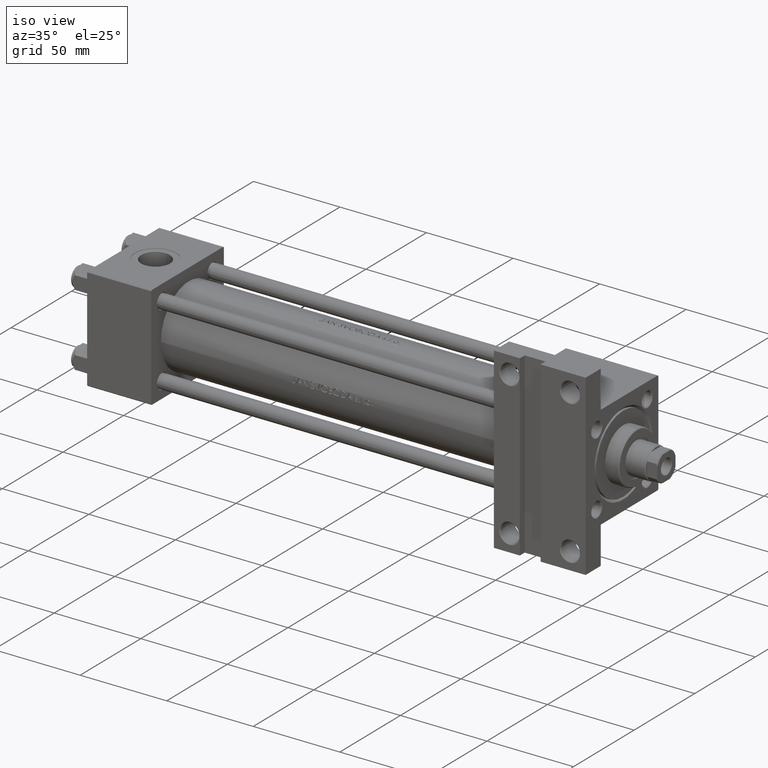
[diagram: clean part render]
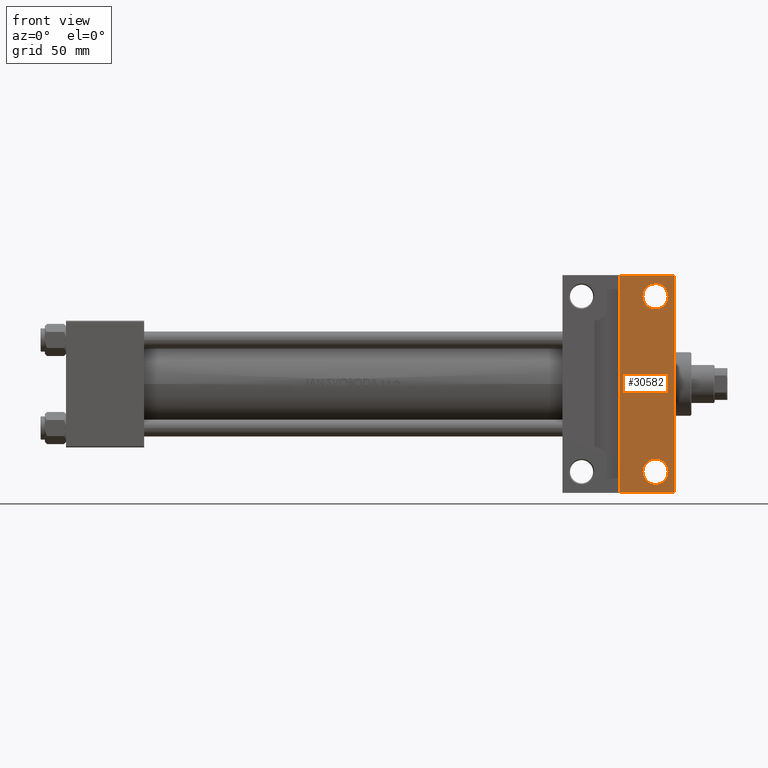
[diagram: tour spotlight — one face highlighted and labeled with its STEP entity id]
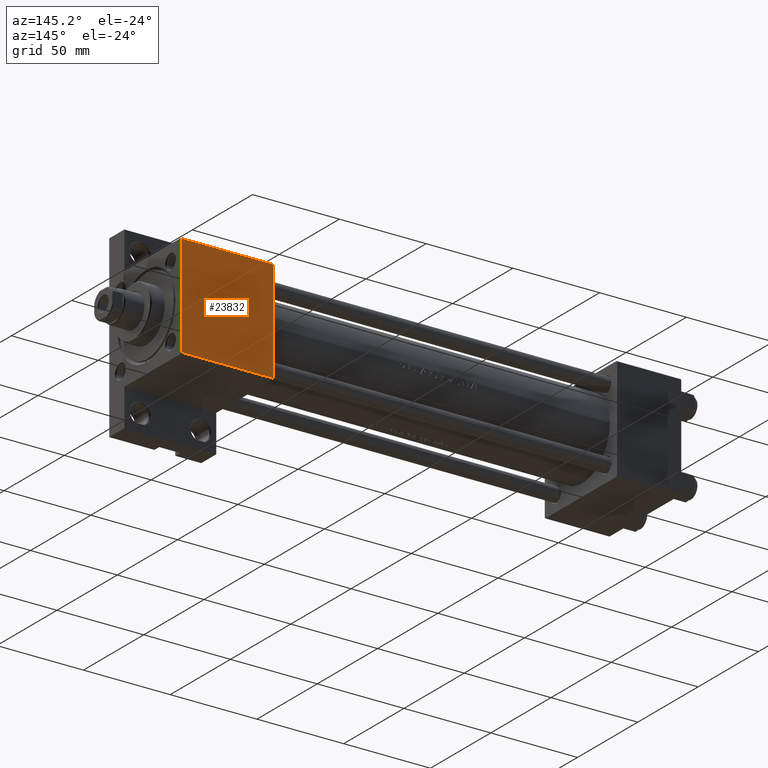
[diagram: tour spotlight — one face highlighted and labeled with its STEP entity id]
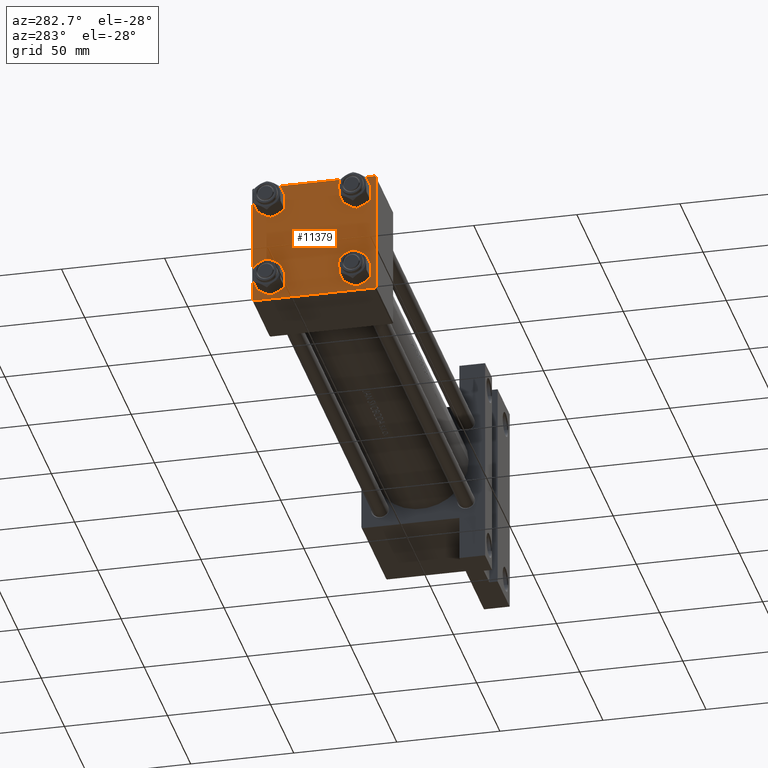
[diagram: tour spotlight — one face highlighted and labeled with its STEP entity id]
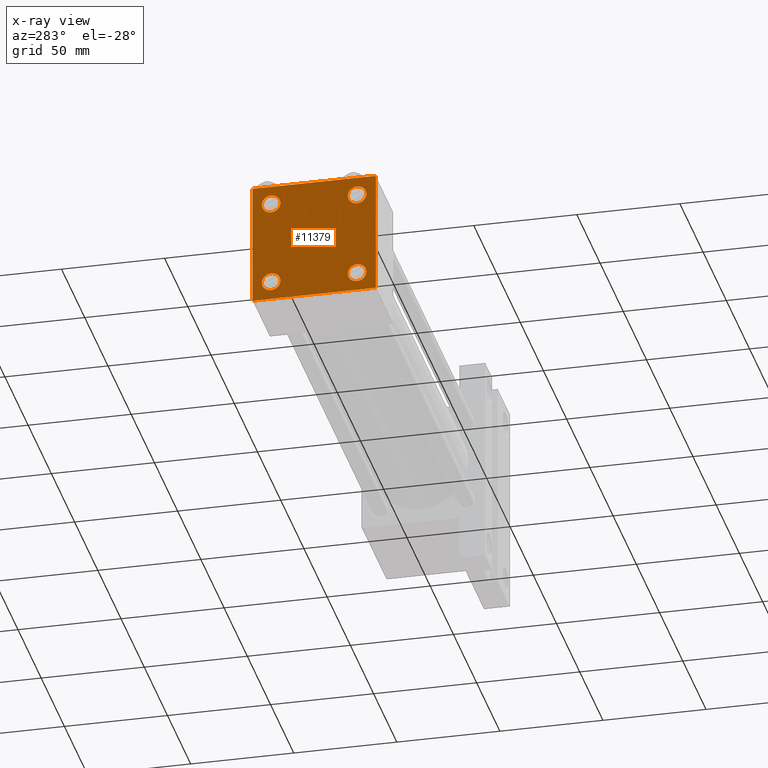
[diagram: x-ray of the same camera — body ghosted, this tour face saturated]
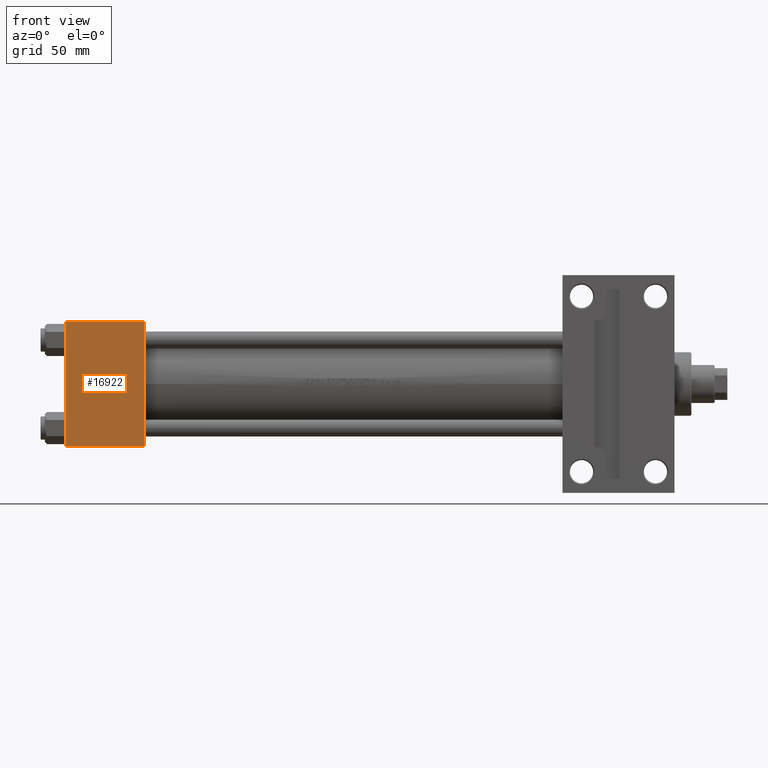
[diagram: tour spotlight — one face highlighted and labeled with its STEP entity id]
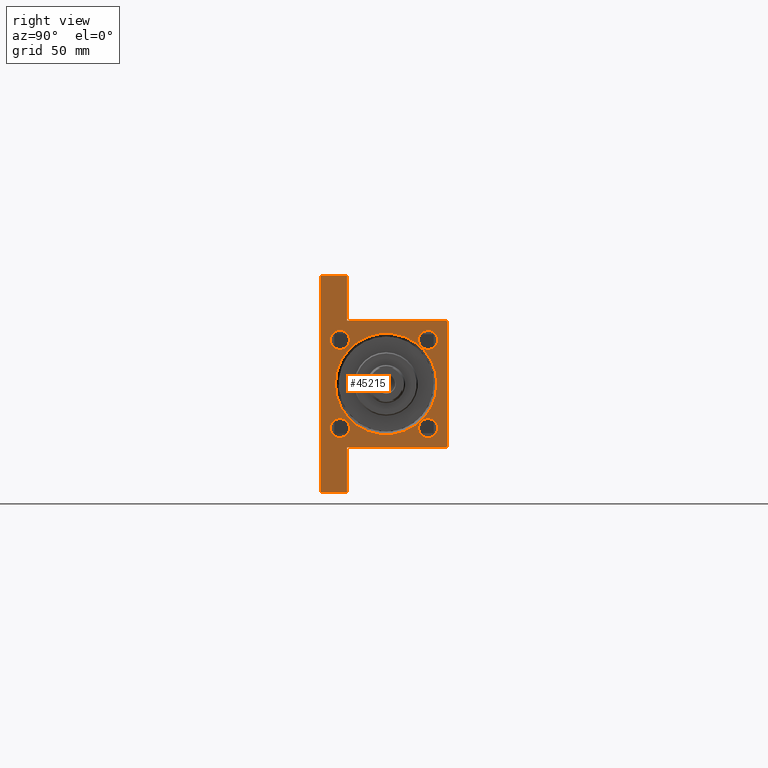
[diagram: tour spotlight — one face highlighted and labeled with its STEP entity id]
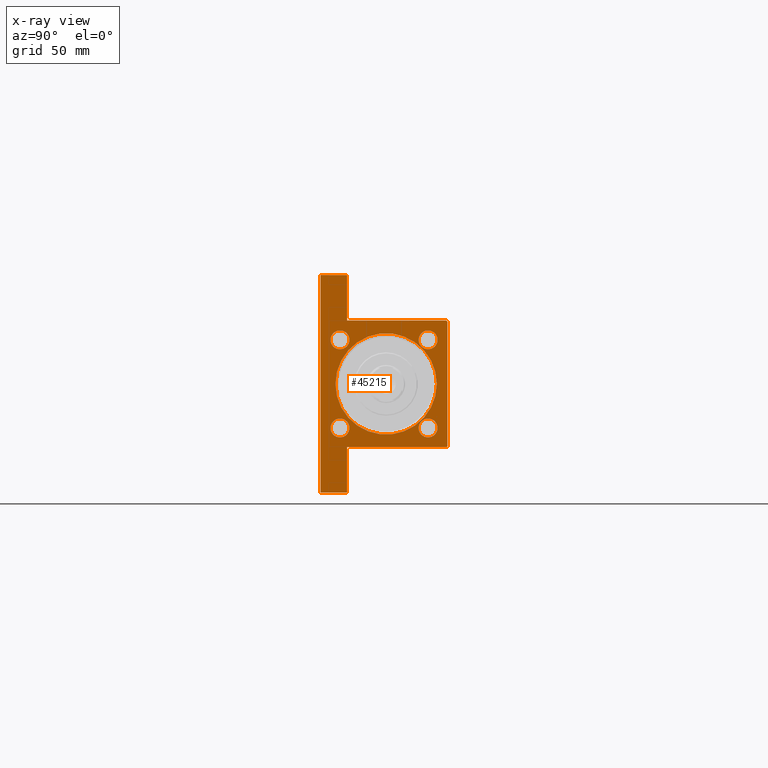
[diagram: x-ray of the same camera — body ghosted, this tour face saturated]
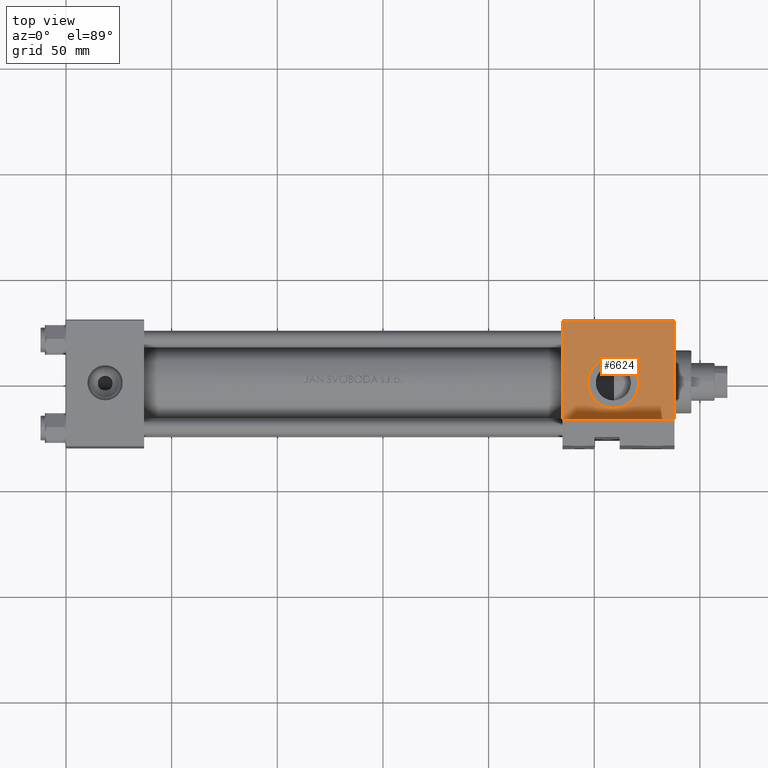
[diagram: tour spotlight — one face highlighted and labeled with its STEP entity id]
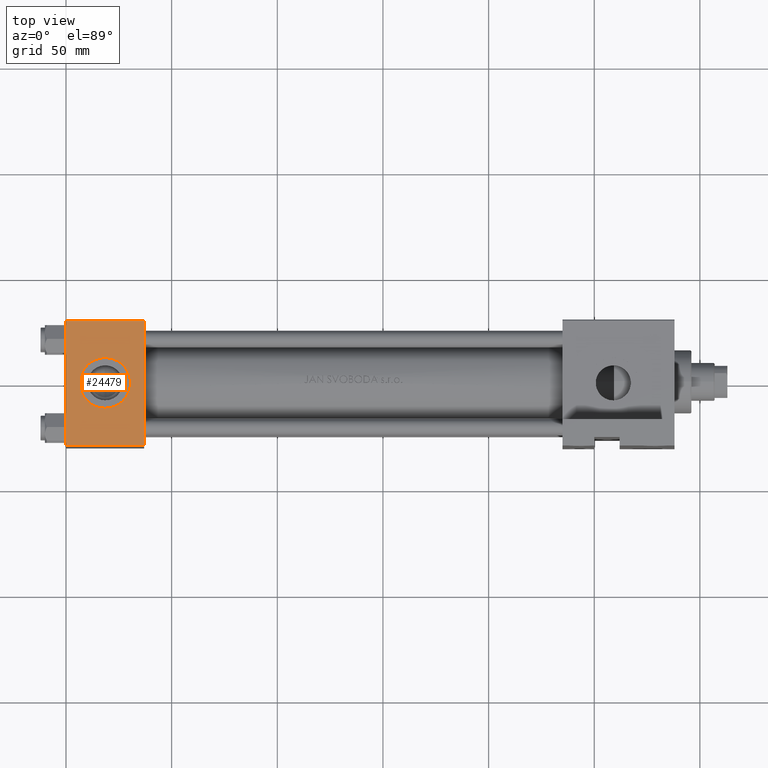
[diagram: tour spotlight — one face highlighted and labeled with its STEP entity id]
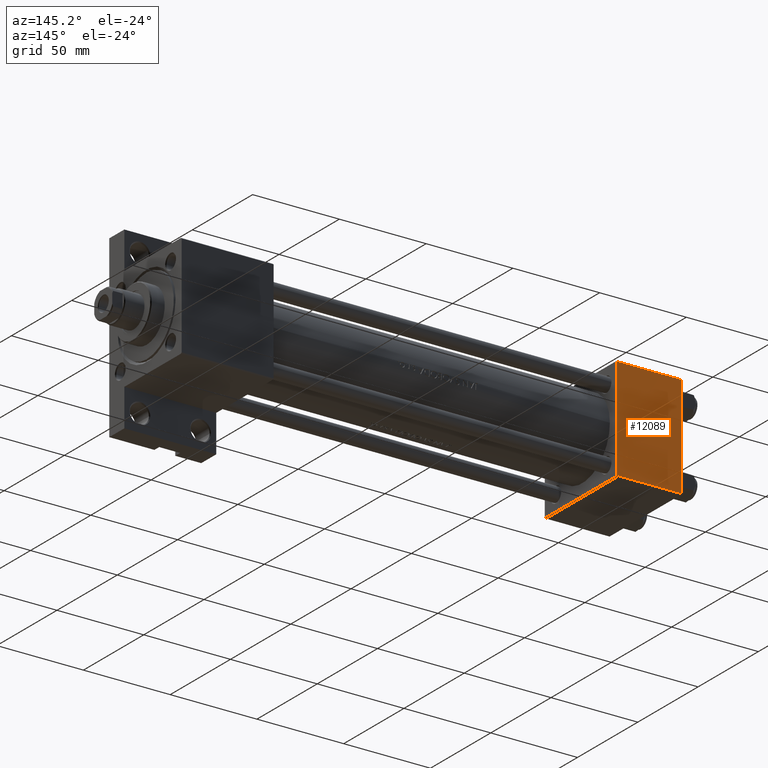
[diagram: tour spotlight — one face highlighted and labeled with its STEP entity id]
A machine part: a face-by-face anatomy tour. The part has 1118 B-rep faces; the first image is the clean iso view, then the 8 largest visible faces are spotlighted one at a time (largest first), each with its STEP entity span.

Face 1 — front view, entity #30582. In plain terms, the highlighted planar face has unit normal (0, -1, -0).
Definition (entity closure, byte-faithful):
#1584 = CARTESIAN_POINT ( 'NONE',  ( 279.0000000000000000, -41.50000000000000000, -30.00000000000000000 ) ) ;
#2647 = VERTEX_POINT ( 'NONE', #20515 ) ;
#2823 = VERTEX_POINT ( 'NONE', #18766 ) ;
#4970 = DIRECTION ( 'NONE',  ( -0.000000000000000000, -1.156482317317871478E-16, 1.000000000000000000 ) ) ;
#5032 = DIRECTION ( 'NONE',  ( -0.000000000000000000, -1.156482317317871478E-16, 1.000000000000000000 ) ) ;
#5243 = DIRECTION ( 'NONE',  ( 0.000000000000000000, 1.000000000000000000, 1.156482317317871478E-16 ) ) ;
#5321 = AXIS2_PLACEMENT_3D ( 'NONE', #7602, #26117, #18210 ) ;
#5564 = EDGE_LOOP ( 'NONE', ( #41723, #18186 ) ) ;
#5737 = EDGE_LOOP ( 'NONE', ( #40930, #27730, #11500, #27483 ) ) ;
#7065 = EDGE_CURVE ( 'NONE', #7555, #45653, #45723, .T. ) ;
#7555 = VERTEX_POINT ( 'NONE', #8970 ) ;
#7602 = CARTESIAN_POINT ( 'NONE',  ( 279.0000000000000000, -41.50000000000000000, -30.00000000000000000 ) ) ;
#7753 = CARTESIAN_POINT ( 'NONE',  ( 235.0000000000000284, 51.49999999999997868, -29.99999999999999645 ) ) ;
#8011 = DIRECTION ( 'NONE',  ( -0.000000000000000000, -1.000000000000000000, -0.000000000000000000 ) ) ;
#8131 = ORIENTED_EDGE ( 'NONE', *, *, #46182, .T. ) ;
#8254 = CARTESIAN_POINT ( 'NONE',  ( 262.0000000000000000, -51.49999999999997868, -29.99999999999999645 ) ) ;
#8970 = CARTESIAN_POINT ( 'NONE',  ( 262.0000000000000000, 51.49999999999997868, -29.99999999999999645 ) ) ;
#9029 = ORIENTED_EDGE ( 'NONE', *, *, #25237, .T. ) ;
#9342 = CARTESIAN_POINT ( 'NONE',  ( 262.0000000000000000, -51.49999999999997868, -29.99999999999999645 ) ) ;
#9426 = VECTOR ( 'NONE', #38232, 1000.000000000000000 ) ;
#10007 = CARTESIAN_POINT ( 'NONE',  ( 288.0000000000000568, -51.50000000000002132, -29.99999999999999645 ) ) ;
#11072 = AXIS2_PLACEMENT_3D ( 'NONE', #32108, #36064, #5243 ) ;
#11500 = ORIENTED_EDGE ( 'NONE', *, *, #12127, .T. ) ;
#12127 = EDGE_CURVE ( 'NONE', #2823, #37973, #15494, .T. ) ;
#13147 = AXIS2_PLACEMENT_3D ( 'NONE', #1584, #5032, #35845 ) ;
#13819 = EDGE_LOOP ( 'NONE', ( #8131, #9029 ) ) ;
#15494 = LINE ( 'NONE', #24105, #46011 ) ;
#15599 = CARTESIAN_POINT ( 'NONE',  ( 279.0000000000000000, 41.50000000000000000, -29.99999999999999289 ) ) ;
#16052 = CARTESIAN_POINT ( 'NONE',  ( 284.9994999999999550, -41.50000000000000000, -30.00000000000000000 ) ) ;
#16591 = PLANE ( 'NONE',  #11072 ) ;
#18186 = ORIENTED_EDGE ( 'NONE', *, *, #22170, .T. ) ;
#18210 = DIRECTION ( 'NONE',  ( 0.000000000000000000, 1.000000000000000000, 0.000000000000000000 ) ) ;
#18766 = CARTESIAN_POINT ( 'NONE',  ( 288.0000000000000568, 51.49999999999996447, -29.99999999999999645 ) ) ;
#19806 = CARTESIAN_POINT ( 'NONE',  ( 279.0000000000000000, 41.50000000000000000, -29.99999999999999289 ) ) ;
#20008 = CARTESIAN_POINT ( 'NONE',  ( 273.0005000000001019, -41.50000000000000000, -30.00000000000000000 ) ) ;
#20515 = CARTESIAN_POINT ( 'NONE',  ( 284.9994999999999550, 41.50000000000000000, -29.99999999999999289 ) ) ;
#22170 = EDGE_CURVE ( 'NONE', #24743, #41417, #22607, .T. ) ;
#22607 = CIRCLE ( 'NONE', #13147, 5.999499999999962974 ) ;
#22721 = CIRCLE ( 'NONE', #47890, 5.999499999999962974 ) ;
#22883 = VECTOR ( 'NONE', #48179, 1000.000000000000000 ) ;
#23619 = EDGE_CURVE ( 'NONE', #41417, #24743, #25785, .T. ) ;
#23786 = VECTOR ( 'NONE', #8011, 1000.000000000000000 ) ;
#24105 = CARTESIAN_POINT ( 'NONE',  ( 288.0000000000000568, 30.00000000000000000, -29.99999999999999289 ) ) ;
#24358 = CIRCLE ( 'NONE', #26765, 5.999499999999962974 ) ;
#24743 = VERTEX_POINT ( 'NONE', #16052 ) ;
#24960 = FACE_OUTER_BOUND ( 'NONE', #5737, .T. ) ;
#25237 = EDGE_CURVE ( 'NONE', #2647, #42797, #22721, .T. ) ;
#25785 = CIRCLE ( 'NONE', #5321, 5.999499999999962974 ) ;
#26117 = DIRECTION ( 'NONE',  ( -0.000000000000000000, -1.156482317317871478E-16, 1.000000000000000000 ) ) ;
#26765 = AXIS2_PLACEMENT_3D ( 'NONE', #15599, #4970, #30883 ) ;
#27483 = ORIENTED_EDGE ( 'NONE', *, *, #46443, .T. ) ;
#27730 = ORIENTED_EDGE ( 'NONE', *, *, #33809, .T. ) ;
#28181 = FACE_BOUND ( 'NONE', #5564, .T. ) ;
#29093 = CARTESIAN_POINT ( 'NONE',  ( 273.0005000000001019, 41.50000000000000000, -29.99999999999999289 ) ) ;
#30582 = ADVANCED_FACE ( 'NONE', ( #24960, #28181, #39522 ), #16591, .T. ) ;
#30883 = DIRECTION ( 'NONE',  ( 0.000000000000000000, 1.000000000000000000, 0.000000000000000000 ) ) ;
#31302 = LINE ( 'NONE', #38717, #9426 ) ;
#32108 = CARTESIAN_POINT ( 'NONE',  ( 288.0000000000000568, 30.00000000000000000, -29.99999999999999289 ) ) ;
#33809 = EDGE_CURVE ( 'NONE', #7555, #2823, #41518, .T. ) ;
#35351 = DIRECTION ( 'NONE',  ( -0.000000000000000000, -1.156482317317871478E-16, 1.000000000000000000 ) ) ;
#35845 = DIRECTION ( 'NONE',  ( 0.000000000000000000, 1.000000000000000000, 0.000000000000000000 ) ) ;
#36064 = DIRECTION ( 'NONE',  ( 0.000000000000000000, 1.156482317317871478E-16, -1.000000000000000000 ) ) ;
#37973 = VERTEX_POINT ( 'NONE', #10007 ) ;
#38232 = DIRECTION ( 'NONE',  ( -1.000000000000000000, -0.000000000000000000, -0.000000000000000000 ) ) ;
#38717 = CARTESIAN_POINT ( 'NONE',  ( 235.0000000000000284, -51.50000000000002132, -29.99999999999999645 ) ) ;
#39522 = FACE_BOUND ( 'NONE', #13819, .T. ) ;
#40930 = ORIENTED_EDGE ( 'NONE', *, *, #7065, .F. ) ;
#41417 = VERTEX_POINT ( 'NONE', #20008 ) ;
#41518 = LINE ( 'NONE', #7753, #22883 ) ;
#41723 = ORIENTED_EDGE ( 'NONE', *, *, #23619, .T. ) ;
#42105 = DIRECTION ( 'NONE',  ( 0.000000000000000000, -1.000000000000000000, -1.156482317317871478E-16 ) ) ;
#42797 = VERTEX_POINT ( 'NONE', #29093 ) ;
#45653 = VERTEX_POINT ( 'NONE', #9342 ) ;
#45723 = LINE ( 'NONE', #8254, #23786 ) ;
#46011 = VECTOR ( 'NONE', #42105, 1000.000000000000000 ) ;
#46181 = DIRECTION ( 'NONE',  ( 0.000000000000000000, 1.000000000000000000, 0.000000000000000000 ) ) ;
#46182 = EDGE_CURVE ( 'NONE', #42797, #2647, #24358, .T. ) ;
#46443 = EDGE_CURVE ( 'NONE', #37973, #45653, #31302, .T. ) ;
#47890 = AXIS2_PLACEMENT_3D ( 'NONE', #19806, #35351, #46181 ) ;
#48179 = DIRECTION ( 'NONE',  ( 1.000000000000000000, -2.618450529776311274E-16, 0.000000000000000000 ) ) ;

Face 2 — auxiliary view, entity #23832. In plain terms, the highlighted planar face has unit normal (0, -1, -0).
Definition (entity closure, byte-faithful):
#2296 = EDGE_CURVE ( 'NONE', #48378, #19691, #18631, .T. ) ;
#2328 = PLANE ( 'NONE',  #17952 ) ;
#2541 = ORIENTED_EDGE ( 'NONE', *, *, #26202, .T. ) ;
#3450 = VERTEX_POINT ( 'NONE', #42244 ) ;
#6545 = ORIENTED_EDGE ( 'NONE', *, *, #14056, .T. ) ;
#9055 = CARTESIAN_POINT ( 'NONE',  ( 288.0000000000000568, -29.49999999999994316, 29.99999999999999289 ) ) ;
#9754 = VECTOR ( 'NONE', #47296, 1000.000000000000000 ) ;
#10323 = CARTESIAN_POINT ( 'NONE',  ( 288.0000000000000568, -29.49999999999994316, 29.99999999999999289 ) ) ;
#11006 = CARTESIAN_POINT ( 'NONE',  ( 288.0000000000000568, 30.00000000000000000, 30.00000000000000000 ) ) ;
#11041 = EDGE_CURVE ( 'NONE', #3450, #19691, #23914, .T. ) ;
#13925 = CARTESIAN_POINT ( 'NONE',  ( 235.0000000000000284, 29.49999999999997158, 30.00000000000000000 ) ) ;
#14056 = EDGE_CURVE ( 'NONE', #31168, #3450, #43915, .T. ) ;
#16180 = VECTOR ( 'NONE', #33572, 1000.000000000000000 ) ;
#17952 = AXIS2_PLACEMENT_3D ( 'NONE', #26002, #25259, #22034 ) ;
#18129 = EDGE_LOOP ( 'NONE', ( #31458, #2541, #6545, #46132 ) ) ;
#18631 = LINE ( 'NONE', #11006, #23154 ) ;
#18902 = CARTESIAN_POINT ( 'NONE',  ( 235.0000000000000284, 29.49999999999997158, 30.00000000000000000 ) ) ;
#19691 = VERTEX_POINT ( 'NONE', #9055 ) ;
#22034 = DIRECTION ( 'NONE',  ( 0.000000000000000000, 1.000000000000000000, 1.156482317317871478E-16 ) ) ;
#23154 = VECTOR ( 'NONE', #37883, 1000.000000000000000 ) ;
#23832 = ADVANCED_FACE ( 'NONE', ( #39572 ), #2328, .F. ) ;
#23914 = LINE ( 'NONE', #10323, #9754 ) ;
#25259 = DIRECTION ( 'NONE',  ( 0.000000000000000000, 1.156482317317871478E-16, -1.000000000000000000 ) ) ;
#26002 = CARTESIAN_POINT ( 'NONE',  ( 288.0000000000000568, 30.00000000000000000, 30.00000000000000000 ) ) ;
#26202 = EDGE_CURVE ( 'NONE', #48378, #31168, #38395, .T. ) ;
#26970 = CARTESIAN_POINT ( 'NONE',  ( 288.0000000000000568, 29.49999999999997158, 30.00000000000000000 ) ) ;
#30500 = DIRECTION ( 'NONE',  ( -1.000000000000000000, 0.000000000000000000, 0.000000000000000000 ) ) ;
#31168 = VERTEX_POINT ( 'NONE', #13925 ) ;
#31458 = ORIENTED_EDGE ( 'NONE', *, *, #2296, .F. ) ;
#33572 = DIRECTION ( 'NONE',  ( 0.000000000000000000, -1.000000000000000000, -1.156482317317871478E-16 ) ) ;
#37883 = DIRECTION ( 'NONE',  ( 0.000000000000000000, -1.000000000000000000, -1.156482317317871478E-16 ) ) ;
#38395 = LINE ( 'NONE', #18902, #40071 ) ;
#39572 = FACE_OUTER_BOUND ( 'NONE', #18129, .T. ) ;
#40071 = VECTOR ( 'NONE', #30500, 1000.000000000000000 ) ;
#40959 = CARTESIAN_POINT ( 'NONE',  ( 235.0000000000000284, 30.00000000000000000, 30.00000000000000000 ) ) ;
#42244 = CARTESIAN_POINT ( 'NONE',  ( 235.0000000000000284, -29.49999999999994316, 29.99999999999999289 ) ) ;
#43915 = LINE ( 'NONE', #40959, #16180 ) ;
#46132 = ORIENTED_EDGE ( 'NONE', *, *, #11041, .T. ) ;
#47296 = DIRECTION ( 'NONE',  ( 1.000000000000000000, 0.000000000000000000, 0.000000000000000000 ) ) ;
#48378 = VERTEX_POINT ( 'NONE', #26970 ) ;

Face 3 — auxiliary view, entity #11379. An x-ray twin of the same camera follows (body ghosted, this face saturated) — the face is partly hidden behind the body. In plain terms, the highlighted planar face has unit normal (-1, 0, -0).
Definition (entity closure, byte-faithful):
#326 = DIRECTION ( 'NONE',  ( 0.000000000000000000, 0.000000000000000000, -1.000000000000000000 ) ) ;
#396 = EDGE_CURVE ( 'NONE', #960, #25768, #26699, .T. ) ;
#783 = CARTESIAN_POINT ( 'NONE',  ( 0.000000000000000000, -30.00000000000000000, 29.99999999999999289 ) ) ;
#960 = VERTEX_POINT ( 'NONE', #48247 ) ;
#1134 = ORIENTED_EDGE ( 'NONE', *, *, #48048, .T. ) ;
#1202 = VECTOR ( 'NONE', #31751, 999.9999999999998863 ) ;
#1708 = CARTESIAN_POINT ( 'NONE',  ( 0.000000000000000000, -29.50000000000000000, -30.00000000000000711 ) ) ;
#1739 = CARTESIAN_POINT ( 'NONE',  ( 0.000000000000000000, -30.00000000000000000, -29.50000000000001776 ) ) ;
#1864 = ORIENTED_EDGE ( 'NONE', *, *, #21728, .F. ) ;
#2048 = AXIS2_PLACEMENT_3D ( 'NONE', #43064, #13239, #28279 ) ;
#2867 = VECTOR ( 'NONE', #38252, 1000.000000000000114 ) ;
#3703 = VECTOR ( 'NONE', #40380, 1000.000000000000000 ) ;
#3866 = CIRCLE ( 'NONE', #29872, 4.500000000000017764 ) ;
#4386 = DIRECTION ( 'NONE',  ( 0.000000000000000000, 0.000000000000000000, 1.000000000000000000 ) ) ;
#4671 = EDGE_LOOP ( 'NONE', ( #27255, #7272 ) ) ;
#5079 = AXIS2_PLACEMENT_3D ( 'NONE', #38909, #27578, #4386 ) ;
#5182 = ORIENTED_EDGE ( 'NONE', *, *, #396, .F. ) ;
#5297 = CARTESIAN_POINT ( 'NONE',  ( 0.000000000000000000, -20.84999999999999076, 20.85000000000000497 ) ) ;
#5584 = DIRECTION ( 'NONE',  ( -1.000000000000000000, 0.000000000000000000, -0.000000000000000000 ) ) ;
#5691 = VERTEX_POINT ( 'NONE', #12564 ) ;
#6023 = AXIS2_PLACEMENT_3D ( 'NONE', #5297, #27763, #35149 ) ;
#6363 = CARTESIAN_POINT ( 'NONE',  ( 0.000000000000000000, 29.99999999999999289, 30.00000000000000000 ) ) ;
#6640 = CIRCLE ( 'NONE', #5079, 4.500000000000017764 ) ;
#7272 = ORIENTED_EDGE ( 'NONE', *, *, #17537, .T. ) ;
#7757 = ORIENTED_EDGE ( 'NONE', *, *, #30518, .T. ) ;
#7791 = CARTESIAN_POINT ( 'NONE',  ( 0.000000000000000000, 29.74999999999999645, 29.74999999999999645 ) ) ;
#8687 = VERTEX_POINT ( 'NONE', #35117 ) ;
#9317 = DIRECTION ( 'NONE',  ( 1.000000000000000000, -0.000000000000000000, 0.000000000000000000 ) ) ;
#10390 = CARTESIAN_POINT ( 'NONE',  ( 0.000000000000000000, 29.99999999999999289, -30.00000000000000000 ) ) ;
#11159 = VERTEX_POINT ( 'NONE', #1708 ) ;
#11379 = ADVANCED_FACE ( 'NONE', ( #42582, #23849, #38894, #20377, #35439 ), #27801, .T. ) ;
#12040 = CARTESIAN_POINT ( 'NONE',  ( 0.000000000000000000, -20.84999999999999076, 16.34999999999998721 ) ) ;
#12126 = DIRECTION ( 'NONE',  ( 0.000000000000000000, 0.000000000000000000, -1.000000000000000000 ) ) ;
#12189 = EDGE_CURVE ( 'NONE', #46486, #23881, #6640, .T. ) ;
#12564 = CARTESIAN_POINT ( 'NONE',  ( 0.000000000000000000, 29.99999999999999289, 29.50000000000000000 ) ) ;
#12567 = CARTESIAN_POINT ( 'NONE',  ( 0.000000000000000000, 20.84999999999999787, 25.35000000000001918 ) ) ;
#13106 = CIRCLE ( 'NONE', #26535, 4.500000000000017764 ) ;
#13239 = DIRECTION ( 'NONE',  ( 1.000000000000000000, -0.000000000000000000, 0.000000000000000000 ) ) ;
#13256 = LINE ( 'NONE', #34977, #1202 ) ;
#13606 = LINE ( 'NONE', #10390, #18605 ) ;
#14636 = CIRCLE ( 'NONE', #24866, 4.500000000000017764 ) ;
#14893 = CARTESIAN_POINT ( 'NONE',  ( 0.000000000000000000, 29.49999999999999289, 30.00000000000000000 ) ) ;
#14949 = DIRECTION ( 'NONE',  ( 0.000000000000000000, 0.000000000000000000, 1.000000000000000000 ) ) ;
#15139 = CARTESIAN_POINT ( 'NONE',  ( 0.000000000000000000, -20.84999999999999076, -25.35000000000002274 ) ) ;
#15186 = CARTESIAN_POINT ( 'NONE',  ( 0.000000000000000000, -20.84999999999999076, 20.85000000000000497 ) ) ;
#15592 = EDGE_LOOP ( 'NONE', ( #36144, #7757 ) ) ;
#16063 = EDGE_CURVE ( 'NONE', #30375, #43826, #14636, .T. ) ;
#16221 = EDGE_CURVE ( 'NONE', #11159, #25768, #24880, .T. ) ;
#16977 = EDGE_CURVE ( 'NONE', #960, #18120, #22712, .T. ) ;
#16988 = CARTESIAN_POINT ( 'NONE',  ( 0.000000000000000000, -20.84999999999999076, -20.85000000000000497 ) ) ;
#17041 = CIRCLE ( 'NONE', #6023, 4.500000000000017764 ) ;
#17340 = VECTOR ( 'NONE', #46459, 1000.000000000000114 ) ;
#17398 = VERTEX_POINT ( 'NONE', #12040 ) ;
#17537 = EDGE_CURVE ( 'NONE', #23881, #46486, #34273, .T. ) ;
#17558 = EDGE_CURVE ( 'NONE', #29232, #38035, #13256, .T. ) ;
#17705 = ORIENTED_EDGE ( 'NONE', *, *, #36274, .T. ) ;
#18120 = VERTEX_POINT ( 'NONE', #21798 ) ;
#18605 = VECTOR ( 'NONE', #20737, 1000.000000000000000 ) ;
#18669 = LINE ( 'NONE', #6363, #3703 ) ;
#19050 = CARTESIAN_POINT ( 'NONE',  ( 0.000000000000000000, -20.84999999999999076, -16.34999999999998721 ) ) ;
#19299 = AXIS2_PLACEMENT_3D ( 'NONE', #19907, #9317, #27586 ) ;
#19644 = EDGE_CURVE ( 'NONE', #43826, #30375, #39857, .T. ) ;
#19907 = CARTESIAN_POINT ( 'NONE',  ( 0.000000000000000000, 20.84999999999999787, 20.85000000000000142 ) ) ;
#20377 = FACE_BOUND ( 'NONE', #4671, .T. ) ;
#20552 = EDGE_CURVE ( 'NONE', #8687, #29367, #13106, .T. ) ;
#20737 = DIRECTION ( 'NONE',  ( 0.000000000000000000, -1.000000000000000000, -1.156482317317871725E-16 ) ) ;
#21026 = EDGE_CURVE ( 'NONE', #29406, #17398, #17041, .T. ) ;
#21728 = EDGE_CURVE ( 'NONE', #48302, #18120, #18669, .T. ) ;
#21749 = EDGE_LOOP ( 'NONE', ( #17705, #27370, #48678, #25032, #5182, #45050, #1864, #1134 ) ) ;
#21798 = CARTESIAN_POINT ( 'NONE',  ( 0.000000000000000000, -29.49999999999998579, 29.99999999999999289 ) ) ;
#22507 = VECTOR ( 'NONE', #44089, 1000.000000000000114 ) ;
#22712 = LINE ( 'NONE', #30850, #2867 ) ;
#22849 = EDGE_LOOP ( 'NONE', ( #29066, #26933 ) ) ;
#23849 = FACE_BOUND ( 'NONE', #22849, .T. ) ;
#23881 = VERTEX_POINT ( 'NONE', #40533 ) ;
#24716 = DIRECTION ( 'NONE',  ( 1.000000000000000000, -0.000000000000000000, 0.000000000000000000 ) ) ;
#24866 = AXIS2_PLACEMENT_3D ( 'NONE', #16988, #27386, #35256 ) ;
#24880 = LINE ( 'NONE', #40395, #22507 ) ;
#24953 = VECTOR ( 'NONE', #326, 1000.000000000000000 ) ;
#25032 = ORIENTED_EDGE ( 'NONE', *, *, #16221, .T. ) ;
#25208 = CARTESIAN_POINT ( 'NONE',  ( 0.000000000000000000, 20.84999999999999787, -20.85000000000000142 ) ) ;
#25768 = VERTEX_POINT ( 'NONE', #1739 ) ;
#26118 = DIRECTION ( 'NONE',  ( 1.000000000000000000, -0.000000000000000000, 0.000000000000000000 ) ) ;
#26240 = LINE ( 'NONE', #33882, #24953 ) ;
#26535 = AXIS2_PLACEMENT_3D ( 'NONE', #45072, #26118, #41136 ) ;
#26699 = LINE ( 'NONE', #783, #45168 ) ;
#26933 = ORIENTED_EDGE ( 'NONE', *, *, #16063, .T. ) ;
#27255 = ORIENTED_EDGE ( 'NONE', *, *, #12189, .T. ) ;
#27370 = ORIENTED_EDGE ( 'NONE', *, *, #17558, .T. ) ;
#27386 = DIRECTION ( 'NONE',  ( 1.000000000000000000, -0.000000000000000000, 0.000000000000000000 ) ) ;
#27578 = DIRECTION ( 'NONE',  ( 1.000000000000000000, -0.000000000000000000, 0.000000000000000000 ) ) ;
#27586 = DIRECTION ( 'NONE',  ( 0.000000000000000000, 0.000000000000000000, 1.000000000000000000 ) ) ;
#27763 = DIRECTION ( 'NONE',  ( 1.000000000000000000, -0.000000000000000000, 0.000000000000000000 ) ) ;
#27801 = PLANE ( 'NONE',  #38929 ) ;
#28039 = CARTESIAN_POINT ( 'NONE',  ( 0.000000000000000000, 29.99999999999999289, -29.50000000000000000 ) ) ;
#28279 = DIRECTION ( 'NONE',  ( 0.000000000000000000, 0.000000000000000000, 1.000000000000000000 ) ) ;
#29066 = ORIENTED_EDGE ( 'NONE', *, *, #19644, .T. ) ;
#29232 = VERTEX_POINT ( 'NONE', #28039 ) ;
#29293 = EDGE_CURVE ( 'NONE', #17398, #29406, #36239, .T. ) ;
#29367 = VERTEX_POINT ( 'NONE', #45980 ) ;
#29406 = VERTEX_POINT ( 'NONE', #31444 ) ;
#29492 = CARTESIAN_POINT ( 'NONE',  ( 0.000000000000000000, 29.49999999999997868, -30.00000000000000000 ) ) ;
#29872 = AXIS2_PLACEMENT_3D ( 'NONE', #25208, #24716, #46891 ) ;
#30229 = DIRECTION ( 'NONE',  ( 1.000000000000000000, -0.000000000000000000, 0.000000000000000000 ) ) ;
#30375 = VERTEX_POINT ( 'NONE', #15139 ) ;
#30518 = EDGE_CURVE ( 'NONE', #29367, #8687, #3866, .T. ) ;
#30850 = CARTESIAN_POINT ( 'NONE',  ( -0.000000000000000000, -29.74999999999999645, 29.74999999999999645 ) ) ;
#31444 = CARTESIAN_POINT ( 'NONE',  ( 0.000000000000000000, -20.84999999999999076, 25.35000000000002274 ) ) ;
#31751 = DIRECTION ( 'NONE',  ( -0.000000000000000000, -0.7071067811865574537, -0.7071067811865376918 ) ) ;
#31968 = DIRECTION ( 'NONE',  ( -0.000000000000000000, 0.000000000000000000, 1.000000000000000000 ) ) ;
#32691 = ORIENTED_EDGE ( 'NONE', *, *, #29293, .T. ) ;
#33882 = CARTESIAN_POINT ( 'NONE',  ( 0.000000000000000000, 29.99999999999999289, 30.00000000000000000 ) ) ;
#34273 = CIRCLE ( 'NONE', #19299, 4.500000000000017764 ) ;
#34977 = CARTESIAN_POINT ( 'NONE',  ( 0.000000000000000000, 29.74999999999957723, -29.75000000000040501 ) ) ;
#35117 = CARTESIAN_POINT ( 'NONE',  ( 0.000000000000000000, 20.84999999999999787, -16.34999999999998366 ) ) ;
#35149 = DIRECTION ( 'NONE',  ( 0.000000000000000000, 0.000000000000000000, 1.000000000000000000 ) ) ;
#35153 = EDGE_CURVE ( 'NONE', #38035, #11159, #13606, .T. ) ;
#35256 = DIRECTION ( 'NONE',  ( 0.000000000000000000, 0.000000000000000000, 1.000000000000000000 ) ) ;
#35439 = FACE_OUTER_BOUND ( 'NONE', #21749, .T. ) ;
#36144 = ORIENTED_EDGE ( 'NONE', *, *, #20552, .T. ) ;
#36239 = CIRCLE ( 'NONE', #46454, 4.500000000000017764 ) ;
#36274 = EDGE_CURVE ( 'NONE', #5691, #29232, #26240, .T. ) ;
#38035 = VERTEX_POINT ( 'NONE', #29492 ) ;
#38252 = DIRECTION ( 'NONE',  ( -0.000000000000000000, 0.7071067811865474617, 0.7071067811865474617 ) ) ;
#38894 = FACE_BOUND ( 'NONE', #15592, .T. ) ;
#38909 = CARTESIAN_POINT ( 'NONE',  ( 0.000000000000000000, 20.84999999999999787, 20.85000000000000142 ) ) ;
#38929 = AXIS2_PLACEMENT_3D ( 'NONE', #39617, #5584, #31968 ) ;
#39233 = ORIENTED_EDGE ( 'NONE', *, *, #21026, .T. ) ;
#39617 = CARTESIAN_POINT ( 'NONE',  ( 0.000000000000000000, 0.000000000000000000, 0.000000000000000000 ) ) ;
#39857 = CIRCLE ( 'NONE', #2048, 4.500000000000017764 ) ;
#40380 = DIRECTION ( 'NONE',  ( 0.000000000000000000, -1.000000000000000000, -1.156482317317871725E-16 ) ) ;
#40395 = CARTESIAN_POINT ( 'NONE',  ( 0.000000000000000000, -29.75000000000001066, -29.75000000000001066 ) ) ;
#40533 = CARTESIAN_POINT ( 'NONE',  ( 0.000000000000000000, 20.84999999999999787, 16.34999999999998366 ) ) ;
#41136 = DIRECTION ( 'NONE',  ( 0.000000000000000000, 0.000000000000000000, 1.000000000000000000 ) ) ;
#41561 = LINE ( 'NONE', #7791, #17340 ) ;
#42582 = FACE_BOUND ( 'NONE', #42917, .T. ) ;
#42917 = EDGE_LOOP ( 'NONE', ( #39233, #32691 ) ) ;
#43064 = CARTESIAN_POINT ( 'NONE',  ( 0.000000000000000000, -20.84999999999999076, -20.85000000000000497 ) ) ;
#43826 = VERTEX_POINT ( 'NONE', #19050 ) ;
#44089 = DIRECTION ( 'NONE',  ( 0.000000000000000000, -0.7071067811865474617, 0.7071067811865474617 ) ) ;
#45050 = ORIENTED_EDGE ( 'NONE', *, *, #16977, .T. ) ;
#45072 = CARTESIAN_POINT ( 'NONE',  ( 0.000000000000000000, 20.84999999999999787, -20.85000000000000142 ) ) ;
#45168 = VECTOR ( 'NONE', #12126, 1000.000000000000000 ) ;
#45980 = CARTESIAN_POINT ( 'NONE',  ( 0.000000000000000000, 20.84999999999999787, -25.35000000000001918 ) ) ;
#46454 = AXIS2_PLACEMENT_3D ( 'NONE', #15186, #30229, #14949 ) ;
#46459 = DIRECTION ( 'NONE',  ( 0.000000000000000000, 0.7071067811865474617, -0.7071067811865474617 ) ) ;
#46486 = VERTEX_POINT ( 'NONE', #12567 ) ;
#46891 = DIRECTION ( 'NONE',  ( 0.000000000000000000, 0.000000000000000000, 1.000000000000000000 ) ) ;
#48048 = EDGE_CURVE ( 'NONE', #48302, #5691, #41561, .T. ) ;
#48247 = CARTESIAN_POINT ( 'NONE',  ( 0.000000000000000000, -30.00000000000000000, 29.49999999999999289 ) ) ;
#48302 = VERTEX_POINT ( 'NONE', #14893 ) ;
#48678 = ORIENTED_EDGE ( 'NONE', *, *, #35153, .T. ) ;

Face 4 — front view, entity #16922. In plain terms, the highlighted planar face has unit normal (0, -1, -0).
Definition (entity closure, byte-faithful):
#706 = DIRECTION ( 'NONE',  ( 0.000000000000000000, -1.000000000000000000, -1.156482317317871725E-16 ) ) ;
#1708 = CARTESIAN_POINT ( 'NONE',  ( 0.000000000000000000, -29.50000000000000000, -30.00000000000000711 ) ) ;
#2751 = FACE_OUTER_BOUND ( 'NONE', #21997, .T. ) ;
#3458 = LINE ( 'NONE', #34280, #14717 ) ;
#3907 = LINE ( 'NONE', #15260, #27359 ) ;
#4421 = VERTEX_POINT ( 'NONE', #38036 ) ;
#4855 = DIRECTION ( 'NONE',  ( -1.000000000000000000, 0.000000000000000000, 0.000000000000000000 ) ) ;
#5568 = EDGE_CURVE ( 'NONE', #38035, #4421, #3458, .T. ) ;
#8169 = CARTESIAN_POINT ( 'NONE',  ( 37.00000000000000000, -29.50000000000000000, -30.00000000000000711 ) ) ;
#10390 = CARTESIAN_POINT ( 'NONE',  ( 0.000000000000000000, 29.99999999999999289, -30.00000000000000000 ) ) ;
#11159 = VERTEX_POINT ( 'NONE', #1708 ) ;
#11316 = EDGE_CURVE ( 'NONE', #39772, #11159, #19163, .T. ) ;
#12787 = ORIENTED_EDGE ( 'NONE', *, *, #35153, .F. ) ;
#13606 = LINE ( 'NONE', #10390, #18605 ) ;
#14717 = VECTOR ( 'NONE', #29609, 1000.000000000000000 ) ;
#14852 = ORIENTED_EDGE ( 'NONE', *, *, #39992, .T. ) ;
#15260 = CARTESIAN_POINT ( 'NONE',  ( 37.00000000000000000, 29.99999999999999289, -30.00000000000000000 ) ) ;
#16922 = ADVANCED_FACE ( 'NONE', ( #2751 ), #48108, .T. ) ;
#17014 = AXIS2_PLACEMENT_3D ( 'NONE', #32585, #33090, #25939 ) ;
#18415 = VECTOR ( 'NONE', #4855, 1000.000000000000000 ) ;
#18605 = VECTOR ( 'NONE', #20737, 1000.000000000000000 ) ;
#19163 = LINE ( 'NONE', #30769, #18415 ) ;
#20737 = DIRECTION ( 'NONE',  ( 0.000000000000000000, -1.000000000000000000, -1.156482317317871725E-16 ) ) ;
#21997 = EDGE_LOOP ( 'NONE', ( #12787, #33067, #14852, #45283 ) ) ;
#25939 = DIRECTION ( 'NONE',  ( 0.000000000000000000, 1.000000000000000000, 1.156482317317871725E-16 ) ) ;
#27359 = VECTOR ( 'NONE', #706, 1000.000000000000000 ) ;
#29492 = CARTESIAN_POINT ( 'NONE',  ( 0.000000000000000000, 29.49999999999997868, -30.00000000000000000 ) ) ;
#29609 = DIRECTION ( 'NONE',  ( 1.000000000000000000, 0.000000000000000000, 0.000000000000000000 ) ) ;
#30769 = CARTESIAN_POINT ( 'NONE',  ( 0.000000000000000000, -29.50000000000001066, -30.00000000000000711 ) ) ;
#32585 = CARTESIAN_POINT ( 'NONE',  ( 37.00000000000000000, 29.99999999999999289, -30.00000000000000000 ) ) ;
#33067 = ORIENTED_EDGE ( 'NONE', *, *, #5568, .T. ) ;
#33090 = DIRECTION ( 'NONE',  ( 0.000000000000000000, 1.156482317317871725E-16, -1.000000000000000000 ) ) ;
#34280 = CARTESIAN_POINT ( 'NONE',  ( 37.00000000000000000, 29.49999999999997868, -30.00000000000000000 ) ) ;
#35153 = EDGE_CURVE ( 'NONE', #38035, #11159, #13606, .T. ) ;
#38035 = VERTEX_POINT ( 'NONE', #29492 ) ;
#38036 = CARTESIAN_POINT ( 'NONE',  ( 37.00000000000000000, 29.49999999999997868, -30.00000000000000000 ) ) ;
#39772 = VERTEX_POINT ( 'NONE', #8169 ) ;
#39992 = EDGE_CURVE ( 'NONE', #4421, #39772, #3907, .T. ) ;
#45283 = ORIENTED_EDGE ( 'NONE', *, *, #11316, .T. ) ;
#48108 = PLANE ( 'NONE',  #17014 ) ;

Face 5 — right view, entity #45215. An x-ray twin of the same camera follows (body ghosted, this face saturated) — the face is partly hidden behind the body. In plain terms, the highlighted planar face has unit normal (-1, 0, -0).
Definition (entity closure, byte-faithful):
#65 = EDGE_CURVE ( 'NONE', #42624, #3934, #2556, .T. ) ;
#217 = CARTESIAN_POINT ( 'NONE',  ( 288.0000000000000568, 20.84999999999999787, 20.85000000000000142 ) ) ;
#278 = CIRCLE ( 'NONE', #9701, 4.499999999999976019 ) ;
#716 = VECTOR ( 'NONE', #3645, 1000.000000000000000 ) ;
#2221 = CARTESIAN_POINT ( 'NONE',  ( 288.0000000000000568, -20.84999999999999432, 25.34999999999997655 ) ) ;
#2295 = VERTEX_POINT ( 'NONE', #41079 ) ;
#2296 = EDGE_CURVE ( 'NONE', #48378, #19691, #18631, .T. ) ;
#2303 = ORIENTED_EDGE ( 'NONE', *, *, #65, .T. ) ;
#2545 = CARTESIAN_POINT ( 'NONE',  ( 288.0000000000000568, 51.49999999999996447, -17.49999999999999645 ) ) ;
#2556 = CIRCLE ( 'NONE', #30160, 4.499999999999976019 ) ;
#2823 = VERTEX_POINT ( 'NONE', #18766 ) ;
#3630 = CIRCLE ( 'NONE', #5220, 4.499999999999976019 ) ;
#3645 = DIRECTION ( 'NONE',  ( 0.000000000000000000, -0.7071067811865672237, 0.7071067811865279218 ) ) ;
#3751 = CIRCLE ( 'NONE', #15566, 23.99999999999996803 ) ;
#3884 = DIRECTION ( 'NONE',  ( 0.000000000000000000, 0.000000000000000000, 1.000000000000000000 ) ) ;
#3934 = VERTEX_POINT ( 'NONE', #2221 ) ;
#4422 = DIRECTION ( 'NONE',  ( -1.000000000000000000, 0.000000000000000000, -0.000000000000000000 ) ) ;
#4454 = CARTESIAN_POINT ( 'NONE',  ( 288.0000000000000568, 30.00000000000000000, 29.50000000000000000 ) ) ;
#4464 = CIRCLE ( 'NONE', #40792, 4.499999999999976019 ) ;
#4490 = VECTOR ( 'NONE', #21766, 1000.000000000000000 ) ;
#4495 = CARTESIAN_POINT ( 'NONE',  ( 288.0000000000000568, 20.84999999999999787, -25.34999999999997655 ) ) ;
#4600 = VERTEX_POINT ( 'NONE', #47100 ) ;
#4807 = EDGE_CURVE ( 'NONE', #20048, #32119, #27367, .T. ) ;
#4886 = EDGE_CURVE ( 'NONE', #2295, #28434, #278, .T. ) ;
#5220 = AXIS2_PLACEMENT_3D ( 'NONE', #41853, #8087, #3884 ) ;
#5376 = LINE ( 'NONE', #46546, #41166 ) ;
#5615 = ORIENTED_EDGE ( 'NONE', *, *, #33252, .F. ) ;
#6282 = ORIENTED_EDGE ( 'NONE', *, *, #36091, .T. ) ;
#7100 = VERTEX_POINT ( 'NONE', #30312 ) ;
#8078 = EDGE_CURVE ( 'NONE', #19691, #20048, #5376, .T. ) ;
#8087 = DIRECTION ( 'NONE',  ( -1.000000000000000000, 0.000000000000000000, -0.000000000000000000 ) ) ;
#8242 = ORIENTED_EDGE ( 'NONE', *, *, #4807, .T. ) ;
#8670 = ORIENTED_EDGE ( 'NONE', *, *, #16377, .T. ) ;
#8983 = VERTEX_POINT ( 'NONE', #33237 ) ;
#9055 = CARTESIAN_POINT ( 'NONE',  ( 288.0000000000000568, -29.49999999999994316, 29.99999999999999289 ) ) ;
#9214 = ORIENTED_EDGE ( 'NONE', *, *, #13152, .T. ) ;
#9321 = FACE_BOUND ( 'NONE', #36076, .T. ) ;
#9337 = ORIENTED_EDGE ( 'NONE', *, *, #8078, .T. ) ;
#9487 = EDGE_CURVE ( 'NONE', #13926, #37049, #28610, .T. ) ;
#9600 = LINE ( 'NONE', #28833, #27598 ) ;
#9701 = AXIS2_PLACEMENT_3D ( 'NONE', #31538, #4422, #12792 ) ;
#10007 = CARTESIAN_POINT ( 'NONE',  ( 288.0000000000000568, -51.50000000000002132, -29.99999999999999645 ) ) ;
#10847 = ORIENTED_EDGE ( 'NONE', *, *, #9487, .T. ) ;
#11006 = CARTESIAN_POINT ( 'NONE',  ( 288.0000000000000568, 30.00000000000000000, 30.00000000000000000 ) ) ;
#11403 = ORIENTED_EDGE ( 'NONE', *, *, #41154, .T. ) ;
#11408 = CARTESIAN_POINT ( 'NONE',  ( 288.0000000000000568, 20.84999999999999787, -16.35000000000002274 ) ) ;
#11827 = ORIENTED_EDGE ( 'NONE', *, *, #12127, .F. ) ;
#12127 = EDGE_CURVE ( 'NONE', #2823, #37973, #15494, .T. ) ;
#12377 = ORIENTED_EDGE ( 'NONE', *, *, #29703, .F. ) ;
#12557 = DIRECTION ( 'NONE',  ( 0.000000000000000000, 0.000000000000000000, -1.000000000000000000 ) ) ;
#12674 = DIRECTION ( 'NONE',  ( -1.000000000000000000, 0.000000000000000000, -0.000000000000000000 ) ) ;
#12792 = DIRECTION ( 'NONE',  ( 0.000000000000000000, 0.000000000000000000, 1.000000000000000000 ) ) ;
#12965 = VERTEX_POINT ( 'NONE', #4495 ) ;
#13016 = DIRECTION ( 'NONE',  ( -0.000000000000000000, 0.000000000000000000, 1.000000000000000000 ) ) ;
#13152 = EDGE_CURVE ( 'NONE', #13462, #37973, #34781, .T. ) ;
#13462 = VERTEX_POINT ( 'NONE', #41363 ) ;
#13507 = FACE_BOUND ( 'NONE', #47689, .T. ) ;
#13926 = VERTEX_POINT ( 'NONE', #17306 ) ;
#15494 = LINE ( 'NONE', #24105, #46011 ) ;
#15566 = AXIS2_PLACEMENT_3D ( 'NONE', #20317, #39795, #46928 ) ;
#15626 = DIRECTION ( 'NONE',  ( 0.000000000000000000, 0.000000000000000000, 1.000000000000000000 ) ) ;
#15633 = AXIS2_PLACEMENT_3D ( 'NONE', #26528, #36708, #22569 ) ;
#15651 = EDGE_LOOP ( 'NONE', ( #23479, #8670 ) ) ;
#15754 = CIRCLE ( 'NONE', #41754, 4.499999999999976019 ) ;
#15893 = DIRECTION ( 'NONE',  ( -1.000000000000000000, 0.000000000000000000, -0.000000000000000000 ) ) ;
#16370 = ORIENTED_EDGE ( 'NONE', *, *, #40144, .T. ) ;
#16377 = EDGE_CURVE ( 'NONE', #35114, #8983, #3630, .T. ) ;
#16479 = ORIENTED_EDGE ( 'NONE', *, *, #39491, .T. ) ;
#16709 = FACE_BOUND ( 'NONE', #34402, .T. ) ;
#17064 = DIRECTION ( 'NONE',  ( 0.000000000000000000, 0.000000000000000000, 1.000000000000000000 ) ) ;
#17193 = AXIS2_PLACEMENT_3D ( 'NONE', #217, #27595, #34010 ) ;
#17198 = FACE_OUTER_BOUND ( 'NONE', #36373, .T. ) ;
#17306 = CARTESIAN_POINT ( 'NONE',  ( 288.0000000000000568, 0.000000000000000000, -22.99999999999996092 ) ) ;
#17346 = LINE ( 'NONE', #2545, #4490 ) ;
#18631 = LINE ( 'NONE', #11006, #23154 ) ;
#18641 = ORIENTED_EDGE ( 'NONE', *, *, #43636, .T. ) ;
#18766 = CARTESIAN_POINT ( 'NONE',  ( 288.0000000000000568, 51.49999999999996447, -29.99999999999999645 ) ) ;
#18821 = CARTESIAN_POINT ( 'NONE',  ( 288.0000000000000568, 20.84999999999999787, -20.85000000000000142 ) ) ;
#19691 = VERTEX_POINT ( 'NONE', #9055 ) ;
#19924 = AXIS2_PLACEMENT_3D ( 'NONE', #34645, #15893, #30940 ) ;
#20048 = VERTEX_POINT ( 'NONE', #20328 ) ;
#20317 = CARTESIAN_POINT ( 'NONE',  ( 288.0000000000000568, 0.000000000000000000, 1.000000000000007772 ) ) ;
#20328 = CARTESIAN_POINT ( 'NONE',  ( 288.0000000000000568, -30.00000000000000000, 29.49999999999993605 ) ) ;
#20752 = DIRECTION ( 'NONE',  ( -1.000000000000000000, 0.000000000000000000, -0.000000000000000000 ) ) ;
#20878 = FACE_BOUND ( 'NONE', #33664, .T. ) ;
#21016 = CARTESIAN_POINT ( 'NONE',  ( 288.0000000000000568, -20.84999999999999432, 20.85000000000000142 ) ) ;
#21766 = DIRECTION ( 'NONE',  ( 0.000000000000000000, -1.000000000000000000, 0.000000000000000000 ) ) ;
#22343 = EDGE_CURVE ( 'NONE', #3934, #42624, #46976, .T. ) ;
#22569 = DIRECTION ( 'NONE',  ( 0.000000000000000000, 0.000000000000000000, 1.000000000000000000 ) ) ;
#23154 = VECTOR ( 'NONE', #37883, 1000.000000000000000 ) ;
#23479 = ORIENTED_EDGE ( 'NONE', *, *, #25079, .T. ) ;
#23804 = DIRECTION ( 'NONE',  ( -0.000000000000000000, -1.000000000000000000, -0.000000000000000000 ) ) ;
#24105 = CARTESIAN_POINT ( 'NONE',  ( 288.0000000000000568, 30.00000000000000000, -29.99999999999999289 ) ) ;
#24735 = ORIENTED_EDGE ( 'NONE', *, *, #32620, .T. ) ;
#24774 = LINE ( 'NONE', #46460, #43829 ) ;
#25079 = EDGE_CURVE ( 'NONE', #8983, #35114, #34520, .T. ) ;
#25215 = VECTOR ( 'NONE', #37705, 1000.000000000000000 ) ;
#25469 = ORIENTED_EDGE ( 'NONE', *, *, #22343, .T. ) ;
#25759 = AXIS2_PLACEMENT_3D ( 'NONE', #26714, #26466, #30397 ) ;
#26466 = DIRECTION ( 'NONE',  ( -1.000000000000000000, 0.000000000000000000, -0.000000000000000000 ) ) ;
#26528 = CARTESIAN_POINT ( 'NONE',  ( 288.0000000000000568, 20.84999999999999787, -20.85000000000000142 ) ) ;
#26597 = CARTESIAN_POINT ( 'NONE',  ( 288.0000000000000568, 29.49999999999997158, 30.00000000000000000 ) ) ;
#26714 = CARTESIAN_POINT ( 'NONE',  ( 288.0000000000000568, -20.84999999999999432, 20.85000000000000142 ) ) ;
#26970 = CARTESIAN_POINT ( 'NONE',  ( 288.0000000000000568, 29.49999999999997158, 30.00000000000000000 ) ) ;
#27221 = DIRECTION ( 'NONE',  ( -1.000000000000000000, 0.000000000000000000, -0.000000000000000000 ) ) ;
#27367 = LINE ( 'NONE', #34519, #28617 ) ;
#27595 = DIRECTION ( 'NONE',  ( -1.000000000000000000, 0.000000000000000000, -0.000000000000000000 ) ) ;
#27598 = VECTOR ( 'NONE', #39687, 1000.000000000000000 ) ;
#27749 = EDGE_CURVE ( 'NONE', #42553, #48378, #37437, .T. ) ;
#28434 = VERTEX_POINT ( 'NONE', #37568 ) ;
#28610 = CIRCLE ( 'NONE', #19924, 23.99999999999996803 ) ;
#28617 = VECTOR ( 'NONE', #12557, 1000.000000000000000 ) ;
#28833 = CARTESIAN_POINT ( 'NONE',  ( 288.0000000000000568, 30.00000000000000000, 30.00000000000000000 ) ) ;
#29703 = EDGE_CURVE ( 'NONE', #42553, #4600, #9600, .T. ) ;
#29832 = CARTESIAN_POINT ( 'NONE',  ( 288.0000000000000568, 51.49999999999996447, -17.49999999999999645 ) ) ;
#29951 = CARTESIAN_POINT ( 'NONE',  ( 288.0000000000000568, 2.939152317953643950E-15, 24.99999999999997868 ) ) ;
#30160 = AXIS2_PLACEMENT_3D ( 'NONE', #21016, #12674, #31651 ) ;
#30306 = LINE ( 'NONE', #29832, #25215 ) ;
#30312 = CARTESIAN_POINT ( 'NONE',  ( 288.0000000000000568, 51.49999999999996447, -17.49999999999999645 ) ) ;
#30397 = DIRECTION ( 'NONE',  ( 0.000000000000000000, 0.000000000000000000, 1.000000000000000000 ) ) ;
#30940 = DIRECTION ( 'NONE',  ( 0.000000000000000000, 0.000000000000000000, 1.000000000000000000 ) ) ;
#31538 = CARTESIAN_POINT ( 'NONE',  ( 288.0000000000000568, -20.85000000000000142, -20.85000000000000142 ) ) ;
#31651 = DIRECTION ( 'NONE',  ( 0.000000000000000000, 0.000000000000000000, 1.000000000000000000 ) ) ;
#31756 = CARTESIAN_POINT ( 'NONE',  ( 288.0000000000000568, 0.000000000000000000, 0.000000000000000000 ) ) ;
#32119 = VERTEX_POINT ( 'NONE', #45380 ) ;
#32188 = AXIS2_PLACEMENT_3D ( 'NONE', #31756, #32721, #13016 ) ;
#32620 = EDGE_CURVE ( 'NONE', #43099, #12965, #15754, .T. ) ;
#32721 = DIRECTION ( 'NONE',  ( -1.000000000000000000, 0.000000000000000000, -0.000000000000000000 ) ) ;
#32982 = ORIENTED_EDGE ( 'NONE', *, *, #4886, .T. ) ;
#33237 = CARTESIAN_POINT ( 'NONE',  ( 288.0000000000000568, 20.84999999999999787, 16.35000000000002274 ) ) ;
#33252 = EDGE_CURVE ( 'NONE', #7100, #2823, #30306, .T. ) ;
#33664 = EDGE_LOOP ( 'NONE', ( #2303, #25469 ) ) ;
#34010 = DIRECTION ( 'NONE',  ( 0.000000000000000000, 0.000000000000000000, 1.000000000000000000 ) ) ;
#34045 = DIRECTION ( 'NONE',  ( 0.000000000000000000, 0.000000000000000000, -1.000000000000000000 ) ) ;
#34402 = EDGE_LOOP ( 'NONE', ( #18641, #24735 ) ) ;
#34519 = CARTESIAN_POINT ( 'NONE',  ( 288.0000000000000568, -30.00000000000000000, 29.99999999999999289 ) ) ;
#34520 = CIRCLE ( 'NONE', #17193, 4.499999999999976019 ) ;
#34645 = CARTESIAN_POINT ( 'NONE',  ( 288.0000000000000568, 0.000000000000000000, 1.000000000000007772 ) ) ;
#34781 = LINE ( 'NONE', #37744, #45276 ) ;
#35114 = VERTEX_POINT ( 'NONE', #35322 ) ;
#35322 = CARTESIAN_POINT ( 'NONE',  ( 288.0000000000000568, 20.84999999999999787, 25.34999999999997655 ) ) ;
#35940 = PLANE ( 'NONE',  #32188 ) ;
#36076 = EDGE_LOOP ( 'NONE', ( #10847, #11403 ) ) ;
#36091 = EDGE_CURVE ( 'NONE', #32119, #13462, #24774, .T. ) ;
#36373 = EDGE_LOOP ( 'NONE', ( #12377, #48666, #43694, #9337, #8242, #6282, #9214, #11827, #5615, #16370 ) ) ;
#36708 = DIRECTION ( 'NONE',  ( -1.000000000000000000, 0.000000000000000000, -0.000000000000000000 ) ) ;
#37049 = VERTEX_POINT ( 'NONE', #29951 ) ;
#37437 = LINE ( 'NONE', #26597, #716 ) ;
#37568 = CARTESIAN_POINT ( 'NONE',  ( 288.0000000000000568, -20.85000000000000142, -16.35000000000002274 ) ) ;
#37705 = DIRECTION ( 'NONE',  ( 0.000000000000000000, 0.000000000000000000, -1.000000000000000000 ) ) ;
#37744 = CARTESIAN_POINT ( 'NONE',  ( 288.0000000000000568, -51.50000000000002132, -17.49999999999999645 ) ) ;
#37883 = DIRECTION ( 'NONE',  ( 0.000000000000000000, -1.000000000000000000, -1.156482317317871478E-16 ) ) ;
#37973 = VERTEX_POINT ( 'NONE', #10007 ) ;
#39171 = DIRECTION ( 'NONE',  ( -0.000000000000000000, -0.7071067811865474617, -0.7071067811865474617 ) ) ;
#39491 = EDGE_CURVE ( 'NONE', #28434, #2295, #4464, .T. ) ;
#39687 = DIRECTION ( 'NONE',  ( 0.000000000000000000, 0.000000000000000000, -1.000000000000000000 ) ) ;
#39752 = CARTESIAN_POINT ( 'NONE',  ( 288.0000000000000568, -20.85000000000000142, -20.85000000000000142 ) ) ;
#39795 = DIRECTION ( 'NONE',  ( -1.000000000000000000, 0.000000000000000000, -0.000000000000000000 ) ) ;
#40144 = EDGE_CURVE ( 'NONE', #7100, #4600, #17346, .T. ) ;
#40792 = AXIS2_PLACEMENT_3D ( 'NONE', #39752, #20752, #17064 ) ;
#41079 = CARTESIAN_POINT ( 'NONE',  ( 288.0000000000000568, -20.85000000000000142, -25.34999999999997655 ) ) ;
#41154 = EDGE_CURVE ( 'NONE', #37049, #13926, #3751, .T. ) ;
#41166 = VECTOR ( 'NONE', #39171, 1000.000000000000114 ) ;
#41363 = CARTESIAN_POINT ( 'NONE',  ( 288.0000000000000568, -51.50000000000002132, -17.49999999999999645 ) ) ;
#41754 = AXIS2_PLACEMENT_3D ( 'NONE', #18821, #27221, #15626 ) ;
#41853 = CARTESIAN_POINT ( 'NONE',  ( 288.0000000000000568, 20.84999999999999787, 20.85000000000000142 ) ) ;
#42105 = DIRECTION ( 'NONE',  ( 0.000000000000000000, -1.000000000000000000, -1.156482317317871478E-16 ) ) ;
#42416 = CARTESIAN_POINT ( 'NONE',  ( 288.0000000000000568, -20.84999999999999432, 16.35000000000002274 ) ) ;
#42553 = VERTEX_POINT ( 'NONE', #4454 ) ;
#42624 = VERTEX_POINT ( 'NONE', #42416 ) ;
#43099 = VERTEX_POINT ( 'NONE', #11408 ) ;
#43636 = EDGE_CURVE ( 'NONE', #12965, #43099, #44744, .T. ) ;
#43694 = ORIENTED_EDGE ( 'NONE', *, *, #2296, .T. ) ;
#43829 = VECTOR ( 'NONE', #23804, 1000.000000000000000 ) ;
#44744 = CIRCLE ( 'NONE', #15633, 4.499999999999976019 ) ;
#45215 = ADVANCED_FACE ( 'NONE', ( #47262, #20878, #13507, #16709, #9321, #17198 ), #35940, .F. ) ;
#45276 = VECTOR ( 'NONE', #34045, 1000.000000000000000 ) ;
#45380 = CARTESIAN_POINT ( 'NONE',  ( 288.0000000000000568, -30.00000000000000000, -17.49999999999998224 ) ) ;
#46011 = VECTOR ( 'NONE', #42105, 1000.000000000000000 ) ;
#46460 = CARTESIAN_POINT ( 'NONE',  ( 288.0000000000000568, -51.50000000000002132, -17.49999999999999645 ) ) ;
#46546 = CARTESIAN_POINT ( 'NONE',  ( 288.0000000000000568, -30.00000000000000000, 29.49999999999993605 ) ) ;
#46928 = DIRECTION ( 'NONE',  ( 0.000000000000000000, 0.000000000000000000, 1.000000000000000000 ) ) ;
#46976 = CIRCLE ( 'NONE', #25759, 4.499999999999976019 ) ;
#47100 = CARTESIAN_POINT ( 'NONE',  ( 288.0000000000000568, 29.99999999999995737, -17.49999999999999645 ) ) ;
#47262 = FACE_BOUND ( 'NONE', #15651, .T. ) ;
#47689 = EDGE_LOOP ( 'NONE', ( #32982, #16479 ) ) ;
#48378 = VERTEX_POINT ( 'NONE', #26970 ) ;
#48666 = ORIENTED_EDGE ( 'NONE', *, *, #27749, .T. ) ;

Face 6 — top view, entity #6624. In plain terms, the highlighted planar face has unit normal (0, 0, -1).
Definition (entity closure, byte-faithful):
#4048 = ORIENTED_EDGE ( 'NONE', *, *, #10029, .F. ) ;
#4807 = EDGE_CURVE ( 'NONE', #20048, #32119, #27367, .T. ) ;
#4935 = CARTESIAN_POINT ( 'NONE',  ( 235.0000000000000284, -30.00000000000000000, 29.99999999999999289 ) ) ;
#5181 = VECTOR ( 'NONE', #14511, 1000.000000000000000 ) ;
#5916 = VERTEX_POINT ( 'NONE', #24086 ) ;
#6624 = ADVANCED_FACE ( 'NONE', ( #46871, #17535 ), #32339, .F. ) ;
#8816 = CARTESIAN_POINT ( 'NONE',  ( 259.0000000000000000, -30.00000000000000000, 12.00000000000003197 ) ) ;
#10029 = EDGE_CURVE ( 'NONE', #11265, #18359, #16044, .T. ) ;
#11263 = EDGE_LOOP ( 'NONE', ( #36814, #28687, #39058, #19741 ) ) ;
#11265 = VERTEX_POINT ( 'NONE', #8816 ) ;
#12557 = DIRECTION ( 'NONE',  ( 0.000000000000000000, 0.000000000000000000, -1.000000000000000000 ) ) ;
#12618 = CARTESIAN_POINT ( 'NONE',  ( 259.0000000000000000, -30.00000000000000000, 0.000000000000000000 ) ) ;
#13321 = CARTESIAN_POINT ( 'NONE',  ( 259.0000000000000000, -30.00000000000000000, -12.00000000000003197 ) ) ;
#14511 = DIRECTION ( 'NONE',  ( 1.000000000000000000, -1.309225264888155637E-16, 0.000000000000000000 ) ) ;
#14633 = DIRECTION ( 'NONE',  ( -1.000000000000000000, 0.000000000000000000, 0.000000000000000000 ) ) ;
#14964 = ORIENTED_EDGE ( 'NONE', *, *, #44699, .F. ) ;
#16044 = CIRCLE ( 'NONE', #37303, 12.00000000000003197 ) ;
#16275 = LINE ( 'NONE', #4935, #43787 ) ;
#16572 = CARTESIAN_POINT ( 'NONE',  ( 288.0000000000000568, -30.00000000000000000, 29.99999999999999289 ) ) ;
#16989 = CARTESIAN_POINT ( 'NONE',  ( 235.0000000000000284, -30.00000000000000000, -17.49999999999999645 ) ) ;
#17158 = EDGE_CURVE ( 'NONE', #5916, #47454, #16275, .T. ) ;
#17535 = FACE_OUTER_BOUND ( 'NONE', #11263, .T. ) ;
#18316 = LINE ( 'NONE', #33376, #21683 ) ;
#18359 = VERTEX_POINT ( 'NONE', #13321 ) ;
#18830 = EDGE_CURVE ( 'NONE', #20048, #5916, #18316, .T. ) ;
#19626 = EDGE_CURVE ( 'NONE', #47454, #32119, #33255, .T. ) ;
#19741 = ORIENTED_EDGE ( 'NONE', *, *, #19626, .T. ) ;
#20048 = VERTEX_POINT ( 'NONE', #20328 ) ;
#20080 = DIRECTION ( 'NONE',  ( 0.000000000000000000, 0.000000000000000000, -1.000000000000000000 ) ) ;
#20328 = CARTESIAN_POINT ( 'NONE',  ( 288.0000000000000568, -30.00000000000000000, 29.49999999999993605 ) ) ;
#21483 = CARTESIAN_POINT ( 'NONE',  ( 259.0000000000000000, -30.00000000000000000, 0.000000000000000000 ) ) ;
#21683 = VECTOR ( 'NONE', #14633, 1000.000000000000000 ) ;
#24086 = CARTESIAN_POINT ( 'NONE',  ( 235.0000000000000284, -30.00000000000000000, 29.49999999999993605 ) ) ;
#26033 = EDGE_LOOP ( 'NONE', ( #14964, #4048 ) ) ;
#27367 = LINE ( 'NONE', #34519, #28617 ) ;
#27677 = DIRECTION ( 'NONE',  ( 0.000000000000000000, -1.000000000000000000, -8.673617379884036705E-17 ) ) ;
#28617 = VECTOR ( 'NONE', #12557, 1000.000000000000000 ) ;
#28687 = ORIENTED_EDGE ( 'NONE', *, *, #18830, .T. ) ;
#29390 = DIRECTION ( 'NONE',  ( 0.000000000000000000, -1.000000000000000000, -8.673617379884036705E-17 ) ) ;
#32119 = VERTEX_POINT ( 'NONE', #45380 ) ;
#32339 = PLANE ( 'NONE',  #38758 ) ;
#33255 = LINE ( 'NONE', #48265, #5181 ) ;
#33376 = CARTESIAN_POINT ( 'NONE',  ( 288.0000000000000568, -30.00000000000000000, 29.49999999999993605 ) ) ;
#34519 = CARTESIAN_POINT ( 'NONE',  ( 288.0000000000000568, -30.00000000000000000, 29.99999999999999289 ) ) ;
#36143 = AXIS2_PLACEMENT_3D ( 'NONE', #21483, #29390, #20080 ) ;
#36814 = ORIENTED_EDGE ( 'NONE', *, *, #4807, .F. ) ;
#37303 = AXIS2_PLACEMENT_3D ( 'NONE', #12618, #27677, #42686 ) ;
#38739 = DIRECTION ( 'NONE',  ( 0.000000000000000000, 0.000000000000000000, -1.000000000000000000 ) ) ;
#38758 = AXIS2_PLACEMENT_3D ( 'NONE', #16572, #47360, #39737 ) ;
#39058 = ORIENTED_EDGE ( 'NONE', *, *, #17158, .T. ) ;
#39737 = DIRECTION ( 'NONE',  ( 0.000000000000000000, -0.000000000000000000, 1.000000000000000000 ) ) ;
#42686 = DIRECTION ( 'NONE',  ( 0.000000000000000000, 0.000000000000000000, -1.000000000000000000 ) ) ;
#43787 = VECTOR ( 'NONE', #38739, 1000.000000000000000 ) ;
#44699 = EDGE_CURVE ( 'NONE', #18359, #11265, #47942, .T. ) ;
#45380 = CARTESIAN_POINT ( 'NONE',  ( 288.0000000000000568, -30.00000000000000000, -17.49999999999998224 ) ) ;
#46871 = FACE_BOUND ( 'NONE', #26033, .T. ) ;
#47360 = DIRECTION ( 'NONE',  ( -0.000000000000000000, 1.000000000000000000, 0.000000000000000000 ) ) ;
#47454 = VERTEX_POINT ( 'NONE', #16989 ) ;
#47942 = CIRCLE ( 'NONE', #36143, 12.00000000000003197 ) ;
#48265 = CARTESIAN_POINT ( 'NONE',  ( 235.0000000000000284, -30.00000000000000000, -17.49999999999999645 ) ) ;

Face 7 — top view, entity #24479. In plain terms, the highlighted planar face has unit normal (0, 0, -1).
Definition (entity closure, byte-faithful):
#396 = EDGE_CURVE ( 'NONE', #960, #25768, #26699, .T. ) ;
#722 = ORIENTED_EDGE ( 'NONE', *, *, #41643, .F. ) ;
#783 = CARTESIAN_POINT ( 'NONE',  ( 0.000000000000000000, -30.00000000000000000, 29.99999999999999289 ) ) ;
#960 = VERTEX_POINT ( 'NONE', #48247 ) ;
#1218 = CARTESIAN_POINT ( 'NONE',  ( 37.00000000000000000, -30.00000000000000000, 29.99999999999999289 ) ) ;
#1739 = CARTESIAN_POINT ( 'NONE',  ( 0.000000000000000000, -30.00000000000000000, -29.50000000000001776 ) ) ;
#2022 = AXIS2_PLACEMENT_3D ( 'NONE', #45608, #35242, #6118 ) ;
#2475 = EDGE_CURVE ( 'NONE', #25768, #45825, #13677, .T. ) ;
#4956 = ORIENTED_EDGE ( 'NONE', *, *, #18598, .F. ) ;
#5246 = PLANE ( 'NONE',  #13216 ) ;
#5678 = ORIENTED_EDGE ( 'NONE', *, *, #396, .T. ) ;
#6118 = DIRECTION ( 'NONE',  ( 0.000000000000000000, 0.000000000000000000, -1.000000000000000000 ) ) ;
#6375 = DIRECTION ( 'NONE',  ( 0.000000000000000000, 0.000000000000000000, -1.000000000000000000 ) ) ;
#9101 = CIRCLE ( 'NONE', #2022, 12.00000000000000178 ) ;
#9720 = DIRECTION ( 'NONE',  ( 1.000000000000000000, 0.000000000000000000, 0.000000000000000000 ) ) ;
#12126 = DIRECTION ( 'NONE',  ( 0.000000000000000000, 0.000000000000000000, -1.000000000000000000 ) ) ;
#13216 = AXIS2_PLACEMENT_3D ( 'NONE', #19796, #23754, #15631 ) ;
#13677 = LINE ( 'NONE', #32166, #29465 ) ;
#14031 = CARTESIAN_POINT ( 'NONE',  ( 37.00000000000000000, -30.00000000000000000, 29.49999999999999289 ) ) ;
#14343 = CARTESIAN_POINT ( 'NONE',  ( 18.50000000000000000, -30.00000000000000000, 0.000000000000000000 ) ) ;
#15631 = DIRECTION ( 'NONE',  ( 0.000000000000000000, -0.000000000000000000, 1.000000000000000000 ) ) ;
#18598 = EDGE_CURVE ( 'NONE', #43295, #35593, #9101, .T. ) ;
#19330 = EDGE_CURVE ( 'NONE', #35639, #45825, #46327, .T. ) ;
#19796 = CARTESIAN_POINT ( 'NONE',  ( 37.00000000000000000, -30.00000000000000000, 29.99999999999999289 ) ) ;
#21556 = ORIENTED_EDGE ( 'NONE', *, *, #2475, .T. ) ;
#21840 = AXIS2_PLACEMENT_3D ( 'NONE', #14343, #29376, #40710 ) ;
#22426 = ORIENTED_EDGE ( 'NONE', *, *, #39162, .T. ) ;
#23380 = CARTESIAN_POINT ( 'NONE',  ( 37.00000000000000000, -30.00000000000000000, 29.49999999999999289 ) ) ;
#23754 = DIRECTION ( 'NONE',  ( -0.000000000000000000, 1.000000000000000000, 0.000000000000000000 ) ) ;
#24479 = ADVANCED_FACE ( 'NONE', ( #42725, #38319 ), #5246, .F. ) ;
#25768 = VERTEX_POINT ( 'NONE', #1739 ) ;
#26699 = LINE ( 'NONE', #783, #45168 ) ;
#28851 = VECTOR ( 'NONE', #6375, 1000.000000000000000 ) ;
#29376 = DIRECTION ( 'NONE',  ( 0.000000000000000000, -1.000000000000000000, -8.673617379884036705E-17 ) ) ;
#29465 = VECTOR ( 'NONE', #9720, 1000.000000000000000 ) ;
#31243 = VECTOR ( 'NONE', #34973, 1000.000000000000000 ) ;
#32166 = CARTESIAN_POINT ( 'NONE',  ( 37.00000000000000000, -30.00000000000000000, -29.50000000000001776 ) ) ;
#32518 = CARTESIAN_POINT ( 'NONE',  ( 18.50000000000000000, -30.00000000000000000, 12.00000000000000178 ) ) ;
#34973 = DIRECTION ( 'NONE',  ( -1.000000000000000000, 0.000000000000000000, 0.000000000000000000 ) ) ;
#35209 = LINE ( 'NONE', #23380, #31243 ) ;
#35242 = DIRECTION ( 'NONE',  ( 0.000000000000000000, -1.000000000000000000, -8.673617379884036705E-17 ) ) ;
#35593 = VERTEX_POINT ( 'NONE', #32518 ) ;
#35639 = VERTEX_POINT ( 'NONE', #14031 ) ;
#37622 = CIRCLE ( 'NONE', #21840, 12.00000000000000178 ) ;
#37913 = CARTESIAN_POINT ( 'NONE',  ( 37.00000000000000000, -30.00000000000000000, -29.50000000000001776 ) ) ;
#38319 = FACE_OUTER_BOUND ( 'NONE', #40432, .T. ) ;
#39162 = EDGE_CURVE ( 'NONE', #35639, #960, #35209, .T. ) ;
#40432 = EDGE_LOOP ( 'NONE', ( #5678, #21556, #46005, #22426 ) ) ;
#40703 = CARTESIAN_POINT ( 'NONE',  ( 18.50000000000000000, -30.00000000000000000, -12.00000000000000178 ) ) ;
#40710 = DIRECTION ( 'NONE',  ( 0.000000000000000000, 0.000000000000000000, -1.000000000000000000 ) ) ;
#41643 = EDGE_CURVE ( 'NONE', #35593, #43295, #37622, .T. ) ;
#42725 = FACE_BOUND ( 'NONE', #42930, .T. ) ;
#42930 = EDGE_LOOP ( 'NONE', ( #4956, #722 ) ) ;
#43295 = VERTEX_POINT ( 'NONE', #40703 ) ;
#45168 = VECTOR ( 'NONE', #12126, 1000.000000000000000 ) ;
#45608 = CARTESIAN_POINT ( 'NONE',  ( 18.50000000000000000, -30.00000000000000000, 0.000000000000000000 ) ) ;
#45825 = VERTEX_POINT ( 'NONE', #37913 ) ;
#46005 = ORIENTED_EDGE ( 'NONE', *, *, #19330, .F. ) ;
#46327 = LINE ( 'NONE', #1218, #28851 ) ;
#48247 = CARTESIAN_POINT ( 'NONE',  ( 0.000000000000000000, -30.00000000000000000, 29.49999999999999289 ) ) ;

Face 8 — auxiliary view, entity #12089. In plain terms, the highlighted planar face has unit normal (0, -1, -0).
Definition (entity closure, byte-faithful):
#201 = DIRECTION ( 'NONE',  ( 0.000000000000000000, 1.156482317317871725E-16, -1.000000000000000000 ) ) ;
#1920 = AXIS2_PLACEMENT_3D ( 'NONE', #14524, #201, #48518 ) ;
#2229 = ORIENTED_EDGE ( 'NONE', *, *, #40421, .T. ) ;
#3703 = VECTOR ( 'NONE', #40380, 1000.000000000000000 ) ;
#3766 = LINE ( 'NONE', #10690, #13706 ) ;
#4426 = VECTOR ( 'NONE', #10263, 1000.000000000000000 ) ;
#6363 = CARTESIAN_POINT ( 'NONE',  ( 0.000000000000000000, 29.99999999999999289, 30.00000000000000000 ) ) ;
#6409 = EDGE_CURVE ( 'NONE', #11992, #48302, #3766, .T. ) ;
#7227 = CARTESIAN_POINT ( 'NONE',  ( 37.00000000000000000, -29.50000000000000000, 29.99999999999999289 ) ) ;
#8058 = VERTEX_POINT ( 'NONE', #19922 ) ;
#9803 = ORIENTED_EDGE ( 'NONE', *, *, #21728, .T. ) ;
#10263 = DIRECTION ( 'NONE',  ( 0.000000000000000000, -1.000000000000000000, -1.156482317317871725E-16 ) ) ;
#10690 = CARTESIAN_POINT ( 'NONE',  ( 0.000000000000000000, 29.49999999999999289, 30.00000000000000000 ) ) ;
#11992 = VERTEX_POINT ( 'NONE', #44335 ) ;
#12089 = ADVANCED_FACE ( 'NONE', ( #33993 ), #33508, .F. ) ;
#13046 = ORIENTED_EDGE ( 'NONE', *, *, #6409, .T. ) ;
#13706 = VECTOR ( 'NONE', #37558, 1000.000000000000000 ) ;
#13963 = VECTOR ( 'NONE', #22746, 1000.000000000000000 ) ;
#14524 = CARTESIAN_POINT ( 'NONE',  ( 37.00000000000000000, 29.99999999999999289, 30.00000000000000000 ) ) ;
#14893 = CARTESIAN_POINT ( 'NONE',  ( 0.000000000000000000, 29.49999999999999289, 30.00000000000000000 ) ) ;
#18120 = VERTEX_POINT ( 'NONE', #21798 ) ;
#18669 = LINE ( 'NONE', #6363, #3703 ) ;
#19922 = CARTESIAN_POINT ( 'NONE',  ( 37.00000000000000000, -29.49999999999998579, 29.99999999999999289 ) ) ;
#21728 = EDGE_CURVE ( 'NONE', #48302, #18120, #18669, .T. ) ;
#21798 = CARTESIAN_POINT ( 'NONE',  ( 0.000000000000000000, -29.49999999999998579, 29.99999999999999289 ) ) ;
#22746 = DIRECTION ( 'NONE',  ( 1.000000000000000000, 0.000000000000000000, 0.000000000000000000 ) ) ;
#25832 = EDGE_LOOP ( 'NONE', ( #9803, #2229, #30438, #13046 ) ) ;
#28762 = LINE ( 'NONE', #40335, #4426 ) ;
#29669 = LINE ( 'NONE', #7227, #13963 ) ;
#30438 = ORIENTED_EDGE ( 'NONE', *, *, #34983, .F. ) ;
#33508 = PLANE ( 'NONE',  #1920 ) ;
#33993 = FACE_OUTER_BOUND ( 'NONE', #25832, .T. ) ;
#34983 = EDGE_CURVE ( 'NONE', #11992, #8058, #28762, .T. ) ;
#37558 = DIRECTION ( 'NONE',  ( -1.000000000000000000, 0.000000000000000000, 0.000000000000000000 ) ) ;
#40335 = CARTESIAN_POINT ( 'NONE',  ( 37.00000000000000000, 29.99999999999999289, 30.00000000000000000 ) ) ;
#40380 = DIRECTION ( 'NONE',  ( 0.000000000000000000, -1.000000000000000000, -1.156482317317871725E-16 ) ) ;
#40421 = EDGE_CURVE ( 'NONE', #18120, #8058, #29669, .T. ) ;
#44335 = CARTESIAN_POINT ( 'NONE',  ( 37.00000000000000000, 29.49999999999999289, 30.00000000000000000 ) ) ;
#48302 = VERTEX_POINT ( 'NONE', #14893 ) ;
#48518 = DIRECTION ( 'NONE',  ( 0.000000000000000000, 1.000000000000000000, 1.156482317317871725E-16 ) ) ;